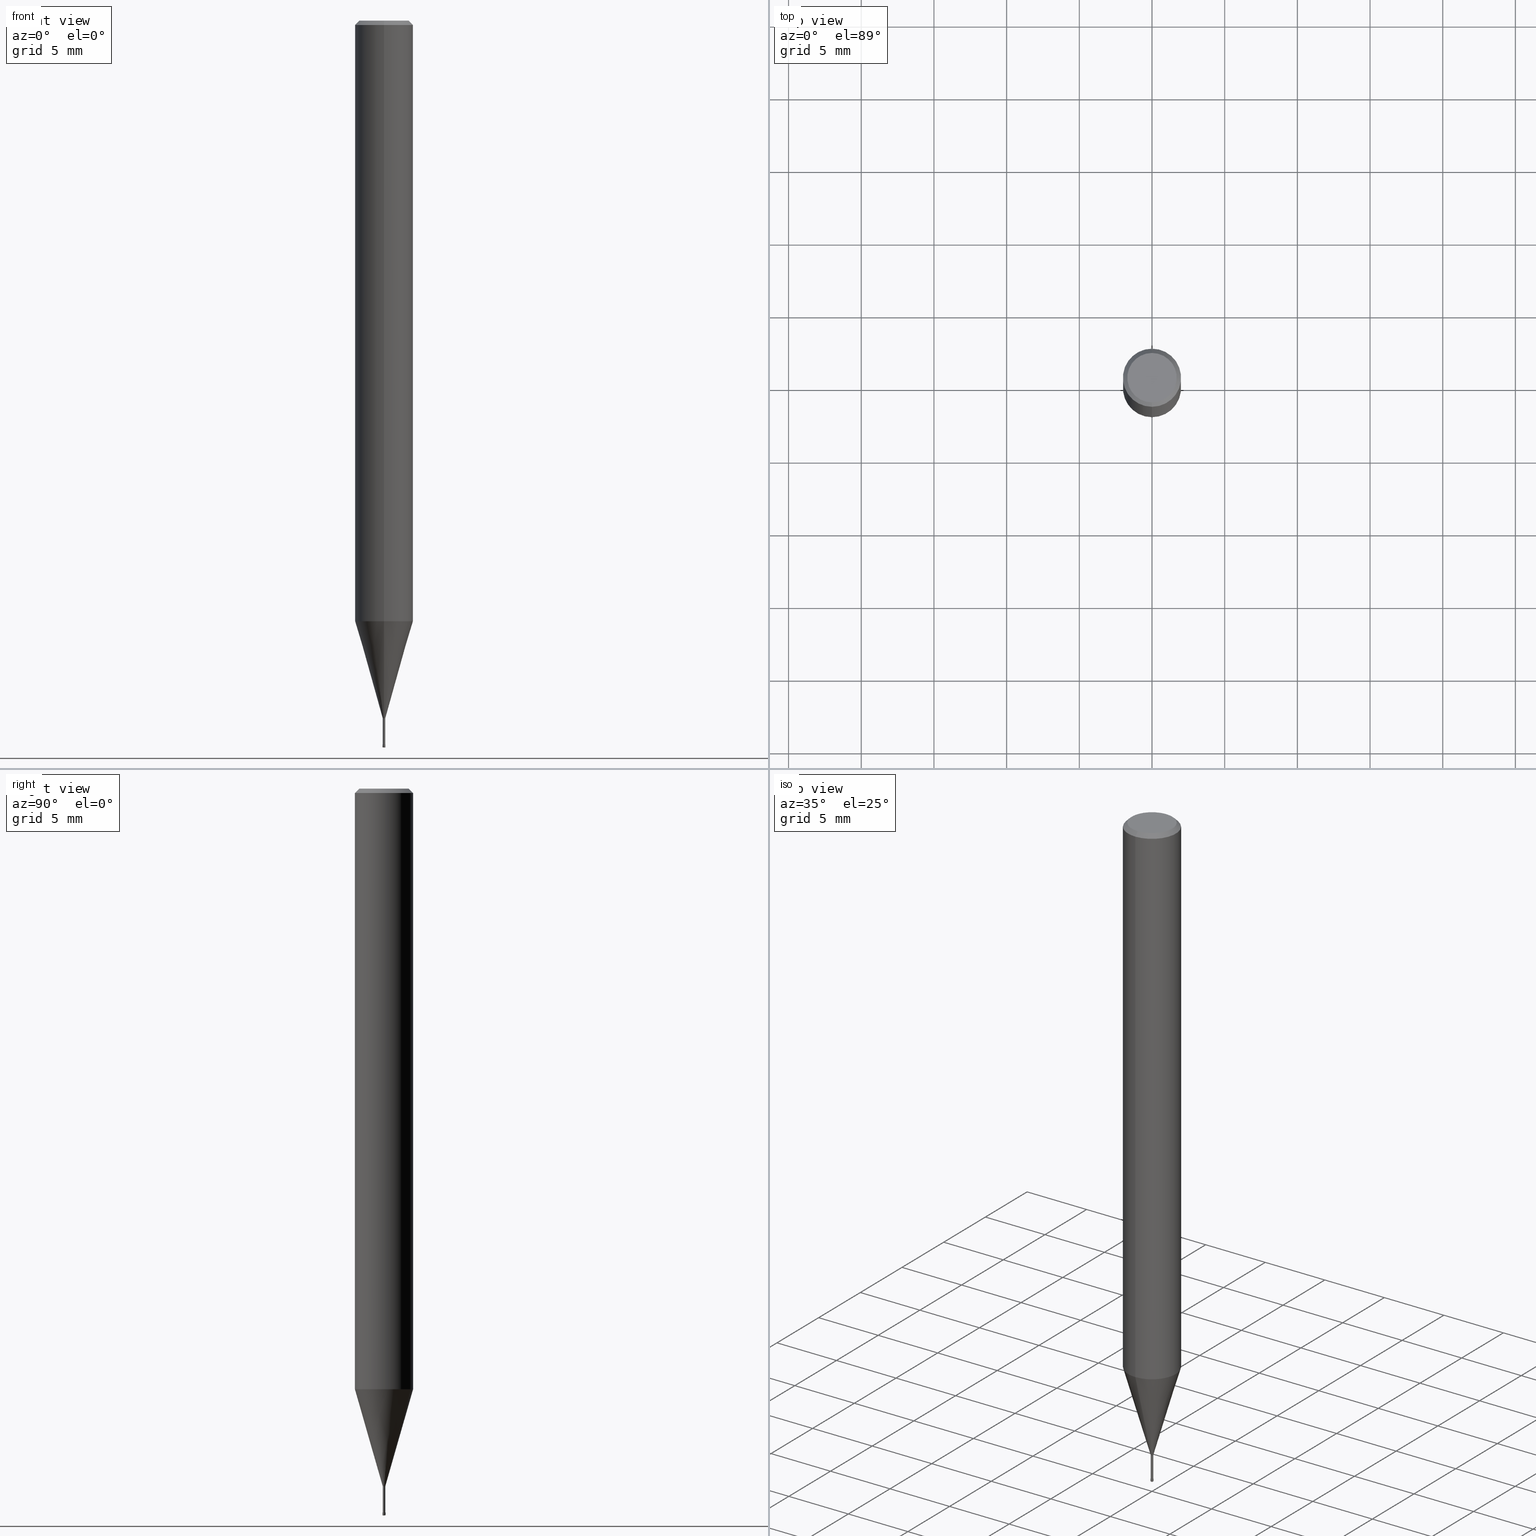
[diagram: canonical four-view strip — front | top / right | iso, engineering-drawing reading convention]
A machine part, canonical four-view strip (front | top / right | iso — engineering-drawing reading convention). The complete STEP part file that produces these views, byte-faithful:
ISO-10303-21;
HEADER;
FILE_DESCRIPTION(('no description'),'unknown implementation level');
FILE_NAME('HLRS2002-005-020E-Huellk.stp','  ',('CIMSOURCE GmbH'),('CADClick - KiM GmbH - www.kimweb.de'),'unknown preprocess','ACIS','unknown authorization');
FILE_SCHEMA(('automotive_design'));
ENDSEC;
DATA;
#1=MECHANICAL_DESIGN_GEOMETRIC_PRESENTATION_REPRESENTATION(' ',(#14,#15,#16,#17,#18,#19,#20,#21,#22,#23,#24,#25,#26,#27,#28,#29,#30,#31,#32,#33,#34,#35,#36,#37,#38,#39,#40,#41,#42,#43,#44,#45,#46,#47,#48,#49,#50,#51,#52,#53,#54,#55,#56,#57,#58,#59,#60,#61,#62,#63,#64,#65,#66,#67,#68,#69,#70,#71,#72,#73,#74,#75,#76,#77,#78,#79,#80),#10);
#2=PRODUCT_DEFINITION_CONTEXT('',#81,'design');
#3=APPLICATION_PROTOCOL_DEFINITION('INTERNATIONAL STANDARD','automotive_design',1994,#81);
#4=PRODUCT_CATEGORY_RELATIONSHIP('NONE','NONE',#82,#83);
#5=SHAPE_DEFINITION_REPRESENTATION(#84,#85);
#6=PRODUCT_DEFINITION_CONTEXT('',#86,'design');
#7=APPLICATION_PROTOCOL_DEFINITION('INTERNATIONAL STANDARD','automotive_design',1994,#86);
#8=PRODUCT_CATEGORY_RELATIONSHIP('NONE','NONE',#87,#88);
#9=SHAPE_DEFINITION_REPRESENTATION(#89,#90);
#10= (GEOMETRIC_REPRESENTATION_CONTEXT(3)GLOBAL_UNCERTAINTY_ASSIGNED_CONTEXT((#93))GLOBAL_UNIT_ASSIGNED_CONTEXT((#95,#96,#97))REPRESENTATION_CONTEXT('NONE','WORKSPACE'));
#14=STYLED_ITEM('',(#99),#100);
#15=STYLED_ITEM('',(#101),#102);
#16=STYLED_ITEM('',(#103),#104);
#17=STYLED_ITEM('',(#105),#106);
#18=STYLED_ITEM('',(#107),#108);
#19=STYLED_ITEM('',(#109),#110);
#20=STYLED_ITEM('',(#111),#112);
#21=STYLED_ITEM('',(#113),#114);
#22=STYLED_ITEM('',(#115),#116);
#23=STYLED_ITEM('',(#117),#118);
#24=STYLED_ITEM('',(#119),#120);
#25=STYLED_ITEM('',(#121),#122);
#26=STYLED_ITEM('',(#123),#124);
#27=STYLED_ITEM('',(#125),#126);
#28=STYLED_ITEM('',(#127),#128);
#29=STYLED_ITEM('',(#129),#130);
#30=STYLED_ITEM('',(#131),#132);
#31=STYLED_ITEM('',(#133),#134);
#32=STYLED_ITEM('',(#135),#136);
#33=STYLED_ITEM('',(#137),#138);
#34=STYLED_ITEM('',(#139),#140);
#35=STYLED_ITEM('',(#141),#142);
#36=STYLED_ITEM('',(#143),#144);
#37=STYLED_ITEM('',(#145),#146);
#38=STYLED_ITEM('',(#147),#148);
#39=STYLED_ITEM('',(#149),#150);
#40=STYLED_ITEM('',(#151),#152);
#41=STYLED_ITEM('',(#153),#154);
#42=STYLED_ITEM('',(#155),#156);
#43=STYLED_ITEM('',(#157),#158);
#44=STYLED_ITEM('',(#159),#160);
#45=STYLED_ITEM('',(#161),#162);
#46=STYLED_ITEM('',(#163),#164);
#47=STYLED_ITEM('',(#165),#166);
#48=STYLED_ITEM('',(#167),#168);
#49=STYLED_ITEM('',(#169),#170);
#50=STYLED_ITEM('',(#171),#172);
#51=STYLED_ITEM('',(#173),#174);
#52=STYLED_ITEM('',(#175),#176);
#53=STYLED_ITEM('',(#177),#178);
#54=STYLED_ITEM('',(#179),#180);
#55=STYLED_ITEM('',(#181),#182);
#56=STYLED_ITEM('',(#183),#184);
#57=STYLED_ITEM('',(#185),#186);
#58=STYLED_ITEM('',(#187),#188);
#59=STYLED_ITEM('',(#189),#190);
#60=STYLED_ITEM('',(#191),#192);
#61=STYLED_ITEM('',(#193),#194);
#62=STYLED_ITEM('',(#195),#196);
#63=STYLED_ITEM('',(#197),#198);
#64=STYLED_ITEM('',(#199),#200);
#65=STYLED_ITEM('',(#201),#202);
#66=STYLED_ITEM('',(#203),#204);
#67=STYLED_ITEM('',(#205),#206);
#68=STYLED_ITEM('',(#207),#208);
#69=STYLED_ITEM('',(#209),#210);
#70=STYLED_ITEM('',(#211),#212);
#71=STYLED_ITEM('',(#213),#214);
#72=STYLED_ITEM('',(#215),#216);
#73=STYLED_ITEM('',(#217),#218);
#74=STYLED_ITEM('',(#219),#220);
#75=STYLED_ITEM('',(#221),#222);
#76=STYLED_ITEM('',(#223),#224);
#77=STYLED_ITEM('',(#225),#226);
#78=STYLED_ITEM('',(#227),#228);
#79=STYLED_ITEM('',(#229),#230);
#80=STYLED_ITEM('',(#231),#232);
#81=APPLICATION_CONTEXT(' ');
#82=PRODUCT_CATEGORY('part','NONE');
#83=PRODUCT_RELATED_PRODUCT_CATEGORY('detail',' ',(#233));
#84=PRODUCT_DEFINITION_SHAPE('NONE','NONE',#234);
#85=ADVANCED_BREP_SHAPE_REPRESENTATION('1',(#224,#235),#10);
#86=APPLICATION_CONTEXT(' ');
#87=PRODUCT_CATEGORY('part','NONE');
#88=PRODUCT_RELATED_PRODUCT_CATEGORY('detail',' ',(#236));
#89=PRODUCT_DEFINITION_SHAPE('NONE','NONE',#237);
#90=ADVANCED_BREP_SHAPE_REPRESENTATION('2',(#122,#238),#10);
#93=UNCERTAINTY_MEASURE_WITH_UNIT(LENGTH_MEASURE(1.0E-006),#95,'','');
#95= (CONVERSION_BASED_UNIT('MILLIMETRE',#241)LENGTH_UNIT()NAMED_UNIT(#244));
#96= (NAMED_UNIT(#246)PLANE_ANGLE_UNIT()SI_UNIT($,.RADIAN.));
#97= (NAMED_UNIT(#246)SOLID_ANGLE_UNIT()SI_UNIT($,.STERADIAN.));
#99=PRESENTATION_STYLE_ASSIGNMENT((#252));
#100=EDGE_CURVE('',#120,#182,#253,.T.);
#101=PRESENTATION_STYLE_ASSIGNMENT((#254));
#102=VERTEX_POINT('',#255);
#103=PRESENTATION_STYLE_ASSIGNMENT((#256));
#104=ADVANCED_FACE('',(#257),#258,.T.);
#105=PRESENTATION_STYLE_ASSIGNMENT((#259));
#106=EDGE_CURVE('',#170,#216,#260,.T.);
#107=PRESENTATION_STYLE_ASSIGNMENT((#261));
#108=VERTEX_POINT('',#262);
#109=PRESENTATION_STYLE_ASSIGNMENT((#263));
#110=EDGE_CURVE('',#206,#152,#264,.T.);
#111=PRESENTATION_STYLE_ASSIGNMENT((#265));
#112=ADVANCED_FACE('',(#266),#267,.T.);
#113=PRESENTATION_STYLE_ASSIGNMENT((#268));
#114=EDGE_CURVE('',#162,#152,#269,.T.);
#115=PRESENTATION_STYLE_ASSIGNMENT((#270));
#116=EDGE_CURVE('',#162,#138,#271,.T.);
#117=PRESENTATION_STYLE_ASSIGNMENT((#272));
#118=EDGE_CURVE('',#108,#120,#273,.T.);
#119=PRESENTATION_STYLE_ASSIGNMENT((#274));
#120=VERTEX_POINT('',#275);
#121=PRESENTATION_STYLE_ASSIGNMENT((#276));
#122=MANIFOLD_SOLID_BREP('2',#277);
#123=PRESENTATION_STYLE_ASSIGNMENT((#278));
#124=ADVANCED_FACE('',(#279),#280,.T.);
#125=PRESENTATION_STYLE_ASSIGNMENT((#281));
#126=EDGE_CURVE('',#108,#194,#282,.T.);
#127=PRESENTATION_STYLE_ASSIGNMENT((#283));
#128=ADVANCED_FACE('',(#284),#285,.T.);
#129=PRESENTATION_STYLE_ASSIGNMENT((#286));
#130=VERTEX_POINT('',#287);
#131=PRESENTATION_STYLE_ASSIGNMENT((#288));
#132=VERTEX_POINT('',#289);
#133=PRESENTATION_STYLE_ASSIGNMENT((#290));
#134=VERTEX_POINT('',#291);
#135=PRESENTATION_STYLE_ASSIGNMENT((#292));
#136=ADVANCED_FACE('',(#293),#294,.T.);
#137=PRESENTATION_STYLE_ASSIGNMENT((#295));
#138=VERTEX_POINT('',#296);
#139=PRESENTATION_STYLE_ASSIGNMENT((#297));
#140=EDGE_CURVE('',#132,#154,#298,.T.);
#141=PRESENTATION_STYLE_ASSIGNMENT((#299));
#142=EDGE_CURVE('',#204,#132,#300,.T.);
#143=PRESENTATION_STYLE_ASSIGNMENT((#301));
#144=EDGE_CURVE('',#130,#204,#302,.T.);
#145=PRESENTATION_STYLE_ASSIGNMENT((#303));
#146=ADVANCED_FACE('',(#304),#305,.T.);
#147=PRESENTATION_STYLE_ASSIGNMENT((#306));
#148=VERTEX_POINT('',#307);
#149=PRESENTATION_STYLE_ASSIGNMENT((#308));
#150=EDGE_CURVE('',#216,#204,#309,.T.);
#151=PRESENTATION_STYLE_ASSIGNMENT((#310));
#152=VERTEX_POINT('',#311);
#153=PRESENTATION_STYLE_ASSIGNMENT((#312));
#154=VERTEX_POINT('',#313);
#155=PRESENTATION_STYLE_ASSIGNMENT((#314));
#156=EDGE_CURVE('',#204,#130,#315,.T.);
#157=PRESENTATION_STYLE_ASSIGNMENT((#316));
#158=ADVANCED_FACE('',(#317,#318),#319,.T.);
#159=PRESENTATION_STYLE_ASSIGNMENT((#320));
#160=EDGE_CURVE('',#182,#120,#321,.T.);
#161=PRESENTATION_STYLE_ASSIGNMENT((#322));
#162=VERTEX_POINT('',#323);
#163=PRESENTATION_STYLE_ASSIGNMENT((#324));
#164=ADVANCED_FACE('',(#325),#326,.T.);
#165=PRESENTATION_STYLE_ASSIGNMENT((#327));
#166=EDGE_CURVE('',#134,#162,#328,.T.);
#167=PRESENTATION_STYLE_ASSIGNMENT((#329));
#168=EDGE_CURVE('',#154,#132,#330,.T.);
#169=PRESENTATION_STYLE_ASSIGNMENT((#331));
#170=VERTEX_POINT('',#332);
#171=PRESENTATION_STYLE_ASSIGNMENT((#333));
#172=ADVANCED_FACE('',(#334),#335,.T.);
#173=PRESENTATION_STYLE_ASSIGNMENT((#336));
#174=EDGE_CURVE('',#194,#108,#337,.T.);
#175=PRESENTATION_STYLE_ASSIGNMENT((#338));
#176=EDGE_CURVE('',#138,#148,#339,.T.);
#177=PRESENTATION_STYLE_ASSIGNMENT((#340));
#178=VERTEX_POINT('',#341);
#179=PRESENTATION_STYLE_ASSIGNMENT((#342));
#180=ADVANCED_FACE('',(#343),#344,.T.);
#181=PRESENTATION_STYLE_ASSIGNMENT((#345));
#182=VERTEX_POINT('',#346);
#183=PRESENTATION_STYLE_ASSIGNMENT((#347));
#184=EDGE_CURVE('',#130,#170,#348,.T.);
#185=PRESENTATION_STYLE_ASSIGNMENT((#349));
#186=EDGE_CURVE('',#178,#102,#350,.T.);
#187=PRESENTATION_STYLE_ASSIGNMENT((#351));
#188=ADVANCED_FACE('',(#352),#353,.T.);
#189=PRESENTATION_STYLE_ASSIGNMENT((#354));
#190=EDGE_CURVE('',#102,#108,#355,.T.);
#191=PRESENTATION_STYLE_ASSIGNMENT((#356));
#192=EDGE_CURVE('',#216,#170,#357,.T.);
#193=PRESENTATION_STYLE_ASSIGNMENT((#358));
#194=VERTEX_POINT('',#359);
#195=PRESENTATION_STYLE_ASSIGNMENT((#360));
#196=EDGE_CURVE('',#194,#178,#361,.T.);
#197=PRESENTATION_STYLE_ASSIGNMENT((#362));
#198=ADVANCED_FACE('',(#363),#364,.T.);
#199=PRESENTATION_STYLE_ASSIGNMENT((#365));
#200=ADVANCED_FACE('',(#366),#367,.T.);
#201=PRESENTATION_STYLE_ASSIGNMENT((#368));
#202=EDGE_CURVE('',#148,#138,#369,.T.);
#203=PRESENTATION_STYLE_ASSIGNMENT((#370));
#204=VERTEX_POINT('',#371);
#205=PRESENTATION_STYLE_ASSIGNMENT((#372));
#206=VERTEX_POINT('',#373);
#207=PRESENTATION_STYLE_ASSIGNMENT((#374));
#208=ADVANCED_FACE('',(#375),#376,.T.);
#209=PRESENTATION_STYLE_ASSIGNMENT((#377));
#210=EDGE_CURVE('',#206,#134,#378,.T.);
#211=PRESENTATION_STYLE_ASSIGNMENT((#379));
#212=EDGE_CURVE('',#182,#194,#380,.T.);
#213=PRESENTATION_STYLE_ASSIGNMENT((#381));
#214=EDGE_CURVE('',#152,#206,#382,.T.);
#215=PRESENTATION_STYLE_ASSIGNMENT((#383));
#216=VERTEX_POINT('',#384);
#217=PRESENTATION_STYLE_ASSIGNMENT((#385));
#218=ADVANCED_FACE('',(#386),#387,.T.);
#219=PRESENTATION_STYLE_ASSIGNMENT((#388));
#220=ADVANCED_FACE('',(#389),#390,.T.);
#221=PRESENTATION_STYLE_ASSIGNMENT((#391));
#222=EDGE_CURVE('',#148,#134,#392,.T.);
#223=PRESENTATION_STYLE_ASSIGNMENT((#393));
#224=MANIFOLD_SOLID_BREP('1',#394);
#225=PRESENTATION_STYLE_ASSIGNMENT((#395));
#226=ADVANCED_FACE('',(#396),#397,.T.);
#227=PRESENTATION_STYLE_ASSIGNMENT((#398));
#228=EDGE_CURVE('',#102,#178,#399,.T.);
#229=PRESENTATION_STYLE_ASSIGNMENT((#400));
#230=EDGE_CURVE('',#154,#130,#401,.T.);
#231=PRESENTATION_STYLE_ASSIGNMENT((#402));
#232=EDGE_CURVE('',#162,#134,#403,.T.);
#233=PRODUCT('1','1','PART-1-DESC',(#404));
#234=PRODUCT_DEFINITION('NONE','NONE',#405,#2);
#235=AXIS2_PLACEMENT_3D('',#406,#407,#408);
#236=PRODUCT('2','2','PART-2-DESC',(#409));
#237=PRODUCT_DEFINITION('NONE','NONE',#410,#6);
#238=AXIS2_PLACEMENT_3D('',#411,#412,#413);
#241=LENGTH_MEASURE_WITH_UNIT(LENGTH_MEASURE(1.0),#414);
#244=DIMENSIONAL_EXPONENTS(1.0,0.0,0.0,0.0,0.0,0.0,0.0);
#246=DIMENSIONAL_EXPONENTS(0.0,0.0,0.0,0.0,0.0,0.0,0.0);
#252=CURVE_STYLE('',#415,POSITIVE_LENGTH_MEASURE(1.0E-006),#416);
#253=CIRCLE('',#417,1.7);
#254=POINT_STYLE(' ',#418,POSITIVE_LENGTH_MEASURE(1.0E-006),#419);
#255=CARTESIAN_POINT('',(2.44921270764475E-016,-2.0,-41.322));
#256=SURFACE_STYLE_USAGE(.BOTH.,#420);
#257=FACE_OUTER_BOUND('',#421,.T.);
#258=TOROIDAL_SURFACE('',#422,0.0499999999999999,0.0500000000000001);
#259=CURVE_STYLE('',#423,POSITIVE_LENGTH_MEASURE(1.0E-006),#424);
#260=CIRCLE('',#425,0.08495);
#261=POINT_STYLE(' ',#426,POSITIVE_LENGTH_MEASURE(1.0E-006),#427);
#262=CARTESIAN_POINT('',(2.44921270764475E-016,-2.0,-0.299999999999997));
#263=CURVE_STYLE('',#428,POSITIVE_LENGTH_MEASURE(1.0E-006),#429);
#264=CIRCLE('',#430,0.05);
#265=SURFACE_STYLE_USAGE(.BOTH.,#431);
#266=FACE_OUTER_BOUND('',#432,.T.);
#267=CYLINDRICAL_SURFACE('',#433,2.0);
#268=CURVE_STYLE('',#434,POSITIVE_LENGTH_MEASURE(1.0E-006),#435);
#269=CIRCLE('',#436,0.0500000000000001);
#270=CURVE_STYLE('',#437,POSITIVE_LENGTH_MEASURE(1.0E-006),#438);
#271=LINE('',#439,#440);
#272=CURVE_STYLE('',#441,POSITIVE_LENGTH_MEASURE(1.0E-006),#442);
#273=LINE('',#443,#444);
#274=POINT_STYLE(' ',#445,POSITIVE_LENGTH_MEASURE(1.0E-006),#446);
#275=CARTESIAN_POINT('',(2.08183080149804E-016,-1.7,0.0));
#276=SURFACE_STYLE_USAGE(.BOTH.,#447);
#277=CLOSED_SHELL('',(#198,#226,#220,#164,#104,#200));
#278=SURFACE_STYLE_USAGE(.BOTH.,#448);
#279=FACE_OUTER_BOUND('',#449,.T.);
#280=CONICAL_SURFACE('',#450,1.85,0.785398163397453);
#281=CURVE_STYLE('',#451,POSITIVE_LENGTH_MEASURE(1.0E-006),#452);
#282=CIRCLE('',#453,2.0);
#283=SURFACE_STYLE_USAGE(.BOTH.,#454);
#284=FACE_OUTER_BOUND('',#455,.T.);
#285=CYLINDRICAL_SURFACE('',#456,0.08495);
#286=POINT_STYLE(' ',#457,POSITIVE_LENGTH_MEASURE(1.0E-006),#458);
#287=CARTESIAN_POINT('',(0.0,0.08495,-48.0));
#288=POINT_STYLE(' ',#459,POSITIVE_LENGTH_MEASURE(1.0E-006),#460);
#289=CARTESIAN_POINT('',(2.44915147732706E-016,-1.99995,-41.322));
#290=POINT_STYLE(' ',#461,POSITIVE_LENGTH_MEASURE(1.0E-006),#462);
#291=CARTESIAN_POINT('',(0.0,0.1,-49.95));
#292=SURFACE_STYLE_USAGE(.BOTH.,#463);
#293=FACE_OUTER_BOUND('',#464,.T.);
#294=PLANE('',#465);
#295=POINT_STYLE(' ',#466,POSITIVE_LENGTH_MEASURE(1.0E-006),#467);
#296=CARTESIAN_POINT('',(1.22338174746855E-017,-0.0999,-49.8));
#297=CURVE_STYLE('',#468,POSITIVE_LENGTH_MEASURE(1.0E-006),#469);
#298=CIRCLE('',#470,1.99995);
#299=CURVE_STYLE('',#471,POSITIVE_LENGTH_MEASURE(1.0E-006),#472);
#300=LINE('',#473,#474);
#301=CURVE_STYLE('',#475,POSITIVE_LENGTH_MEASURE(1.0E-006),#476);
#302=CIRCLE('',#477,0.08495);
#303=SURFACE_STYLE_USAGE(.BOTH.,#478);
#304=FACE_OUTER_BOUND('',#479,.T.);
#305=CYLINDRICAL_SURFACE('',#480,2.0);
#306=POINT_STYLE(' ',#481,POSITIVE_LENGTH_MEASURE(1.0E-006),#482);
#307=CARTESIAN_POINT('',(0.0,0.0999,-49.8));
#308=CURVE_STYLE('',#483,POSITIVE_LENGTH_MEASURE(1.0E-006),#484);
#309=LINE('',#485,#486);
#310=POINT_STYLE(' ',#487,POSITIVE_LENGTH_MEASURE(1.0E-006),#488);
#311=CARTESIAN_POINT('',(6.12303176911189E-018,-0.05,-50.0));
#312=POINT_STYLE(' ',#489,POSITIVE_LENGTH_MEASURE(1.0E-006),#490);
#313=CARTESIAN_POINT('',(0.0,1.99995,-41.322));
#314=CURVE_STYLE('',#491,POSITIVE_LENGTH_MEASURE(1.0E-006),#492);
#315=CIRCLE('',#493,0.08495);
#316=SURFACE_STYLE_USAGE(.BOTH.,#494);
#317=FACE_OUTER_BOUND('',#495,.T.);
#318=FACE_BOUND('',#496,.T.);
#319=PLANE('',#497);
#320=CURVE_STYLE('',#498,POSITIVE_LENGTH_MEASURE(1.0E-006),#499);
#321=CIRCLE('',#500,1.7);
#322=POINT_STYLE(' ',#501,POSITIVE_LENGTH_MEASURE(1.0E-006),#502);
#323=CARTESIAN_POINT('',(1.22460635382238E-017,-0.1,-49.95));
#324=SURFACE_STYLE_USAGE(.BOTH.,#503);
#325=FACE_OUTER_BOUND('',#504,.T.);
#326=CONICAL_SURFACE('',#505,0.09995,0.00066666656790128);
#327=CURVE_STYLE('',#506,POSITIVE_LENGTH_MEASURE(1.0E-006),#507);
#328=CIRCLE('',#508,0.1);
#329=CURVE_STYLE('',#509,POSITIVE_LENGTH_MEASURE(1.0E-006),#510);
#330=CIRCLE('',#511,1.99995);
#331=POINT_STYLE(' ',#512,POSITIVE_LENGTH_MEASURE(1.0E-006),#513);
#332=CARTESIAN_POINT('',(0.0,0.08495,-49.8));
#333=SURFACE_STYLE_USAGE(.BOTH.,#514);
#334=FACE_OUTER_BOUND('',#515,.T.);
#335=CONICAL_SURFACE('',#516,1.04245,0.279268497676986);
#336=CURVE_STYLE('',#517,POSITIVE_LENGTH_MEASURE(1.0E-006),#518);
#337=CIRCLE('',#519,2.0);
#338=CURVE_STYLE('',#520,POSITIVE_LENGTH_MEASURE(1.0E-006),#521);
#339=CIRCLE('',#522,0.0999);
#340=POINT_STYLE(' ',#523,POSITIVE_LENGTH_MEASURE(1.0E-006),#524);
#341=CARTESIAN_POINT('',(0.0,2.0,-41.322));
#342=SURFACE_STYLE_USAGE(.BOTH.,#525);
#343=FACE_OUTER_BOUND('',#526,.T.);
#344=CONICAL_SURFACE('',#527,1.04245,0.279268497676986);
#345=POINT_STYLE(' ',#528,POSITIVE_LENGTH_MEASURE(1.0E-006),#529);
#346=CARTESIAN_POINT('',(0.0,1.7,0.0));
#347=CURVE_STYLE('',#530,POSITIVE_LENGTH_MEASURE(1.0E-006),#531);
#348=LINE('',#532,#533);
#349=CURVE_STYLE('',#534,POSITIVE_LENGTH_MEASURE(1.0E-006),#535);
#350=CIRCLE('',#536,2.0);
#351=SURFACE_STYLE_USAGE(.BOTH.,#537);
#352=FACE_OUTER_BOUND('',#538,.T.);
#353=PLANE('',#539);
#354=CURVE_STYLE('',#540,POSITIVE_LENGTH_MEASURE(1.0E-006),#541);
#355=LINE('',#542,#543);
#356=CURVE_STYLE('',#544,POSITIVE_LENGTH_MEASURE(1.0E-006),#545);
#357=CIRCLE('',#546,0.08495);
#358=POINT_STYLE(' ',#547,POSITIVE_LENGTH_MEASURE(1.0E-006),#548);
#359=CARTESIAN_POINT('',(0.0,2.0,-0.299999999999997));
#360=CURVE_STYLE('',#549,POSITIVE_LENGTH_MEASURE(1.0E-006),#550);
#361=LINE('',#551,#552);
#362=SURFACE_STYLE_USAGE(.BOTH.,#553);
#363=FACE_OUTER_BOUND('',#554,.T.);
#364=TOROIDAL_SURFACE('',#555,0.0499999999999999,0.0500000000000001);
#365=SURFACE_STYLE_USAGE(.BOTH.,#556);
#366=FACE_OUTER_BOUND('',#557,.T.);
#367=PLANE('',#558);
#368=CURVE_STYLE('',#559,POSITIVE_LENGTH_MEASURE(1.0E-006),#560);
#369=CIRCLE('',#561,0.0999);
#370=POINT_STYLE(' ',#562,POSITIVE_LENGTH_MEASURE(1.0E-006),#563);
#371=CARTESIAN_POINT('',(1.04030309757211E-017,-0.08495,-48.0));
#372=POINT_STYLE(' ',#564,POSITIVE_LENGTH_MEASURE(1.0E-006),#565);
#373=CARTESIAN_POINT('',(0.0,0.05,-50.0));
#374=SURFACE_STYLE_USAGE(.BOTH.,#566);
#375=FACE_OUTER_BOUND('',#567,.T.);
#376=CONICAL_SURFACE('',#568,1.85,0.785398163397453);
#377=CURVE_STYLE('',#569,POSITIVE_LENGTH_MEASURE(1.0E-006),#570);
#378=CIRCLE('',#571,0.0500000000000001);
#379=CURVE_STYLE('',#572,POSITIVE_LENGTH_MEASURE(1.0E-006),#573);
#380=LINE('',#574,#575);
#381=CURVE_STYLE('',#576,POSITIVE_LENGTH_MEASURE(1.0E-006),#577);
#382=CIRCLE('',#578,0.05);
#383=POINT_STYLE(' ',#579,POSITIVE_LENGTH_MEASURE(1.0E-006),#580);
#384=CARTESIAN_POINT('',(1.04030309757211E-017,-0.08495,-49.8));
#385=SURFACE_STYLE_USAGE(.BOTH.,#581);
#386=FACE_OUTER_BOUND('',#582,.T.);
#387=CYLINDRICAL_SURFACE('',#583,0.08495);
#388=SURFACE_STYLE_USAGE(.BOTH.,#584);
#389=FACE_OUTER_BOUND('',#585,.T.);
#390=PLANE('',#586);
#391=CURVE_STYLE('',#587,POSITIVE_LENGTH_MEASURE(1.0E-006),#588);
#392=LINE('',#589,#590);
#393=SURFACE_STYLE_USAGE(.BOTH.,#591);
#394=CLOSED_SHELL('',(#128,#172,#146,#208,#158,#188,#124,#112,#180,#218,#136));
#395=SURFACE_STYLE_USAGE(.BOTH.,#592);
#396=FACE_OUTER_BOUND('',#593,.T.);
#397=CONICAL_SURFACE('',#594,0.09995,0.00066666656790128);
#398=CURVE_STYLE('',#595,POSITIVE_LENGTH_MEASURE(1.0E-006),#596);
#399=CIRCLE('',#597,2.0);
#400=CURVE_STYLE('',#598,POSITIVE_LENGTH_MEASURE(1.0E-006),#599);
#401=LINE('',#600,#601);
#402=CURVE_STYLE('',#602,POSITIVE_LENGTH_MEASURE(1.0E-006),#603);
#403=CIRCLE('',#604,0.1);
#404=PRODUCT_CONTEXT('',#81,'mechanical');
#405=PRODUCT_DEFINITION_FORMATION_WITH_SPECIFIED_SOURCE(' ','NONE',#233,.NOT_KNOWN.);
#406=CARTESIAN_POINT('',(0.0,0.0,0.0));
#407=DIRECTION('',(0.0,0.0,1.0));
#408=DIRECTION('',(1.0,0.0,0.0));
#409=PRODUCT_CONTEXT('',#86,'mechanical');
#410=PRODUCT_DEFINITION_FORMATION_WITH_SPECIFIED_SOURCE(' ','NONE',#236,.NOT_KNOWN.);
#411=CARTESIAN_POINT('',(0.0,0.0,0.0));
#412=DIRECTION('',(0.0,0.0,1.0));
#413=DIRECTION('',(1.0,0.0,0.0));
#414= (NAMED_UNIT(#244)LENGTH_UNIT()SI_UNIT(.MILLI.,.METRE.));
#415=DRAUGHTING_PRE_DEFINED_CURVE_FONT('continuous');
#416=COLOUR_RGB('',0.498039215803146,0.498039215803146,0.498039215803146);
#417=AXIS2_PLACEMENT_3D('',#606,#607,#608);
#418=PRE_DEFINED_MARKER('');
#419=COLOUR_RGB('',0.498039215803146,0.498039215803146,0.498039215803146);
#420=SURFACE_SIDE_STYLE('',(#609));
#421=EDGE_LOOP('',(#610,#611,#612,#613));
#422=AXIS2_PLACEMENT_3D('',#614,#615,#616);
#423=DRAUGHTING_PRE_DEFINED_CURVE_FONT('continuous');
#424=COLOUR_RGB('',0.498039215803146,0.498039215803146,0.498039215803146);
#425=AXIS2_PLACEMENT_3D('',#617,#618,#619);
#426=PRE_DEFINED_MARKER('');
#427=COLOUR_RGB('',0.498039215803146,0.498039215803146,0.498039215803146);
#428=DRAUGHTING_PRE_DEFINED_CURVE_FONT('continuous');
#429=COLOUR_RGB('',0.800000011920929,0.800000011920929,0.800000011920929);
#430=AXIS2_PLACEMENT_3D('',#620,#621,#622);
#431=SURFACE_SIDE_STYLE('',(#623));
#432=EDGE_LOOP('',(#624,#625,#626,#627));
#433=AXIS2_PLACEMENT_3D('',#628,#629,#630);
#434=DRAUGHTING_PRE_DEFINED_CURVE_FONT('continuous');
#435=COLOUR_RGB('',0.800000011920929,0.800000011920929,0.800000011920929);
#436=AXIS2_PLACEMENT_3D('',#631,#632,#633);
#437=DRAUGHTING_PRE_DEFINED_CURVE_FONT('continuous');
#438=COLOUR_RGB('',0.800000011920929,0.800000011920929,0.800000011920929);
#439=CARTESIAN_POINT('',(1.22399405064547E-017,-0.09995,-49.875));
#440=VECTOR('',#634,1.0);
#441=DRAUGHTING_PRE_DEFINED_CURVE_FONT('continuous');
#442=COLOUR_RGB('',0.498039215803146,0.498039215803146,0.498039215803146);
#443=CARTESIAN_POINT('',(2.2655217545714E-016,-1.85,-0.149999999999999));
#444=VECTOR('',#635,1.0);
#445=PRE_DEFINED_MARKER('');
#446=COLOUR_RGB('',0.498039215803146,0.498039215803146,0.498039215803146);
#447=SURFACE_SIDE_STYLE('',(#636));
#448=SURFACE_SIDE_STYLE('',(#637));
#449=EDGE_LOOP('',(#638,#639,#640,#641));
#450=AXIS2_PLACEMENT_3D('',#642,#643,#644);
#451=DRAUGHTING_PRE_DEFINED_CURVE_FONT('continuous');
#452=COLOUR_RGB('',0.498039215803146,0.498039215803146,0.498039215803146);
#453=AXIS2_PLACEMENT_3D('',#645,#646,#647);
#454=SURFACE_SIDE_STYLE('',(#648));
#455=EDGE_LOOP('',(#649,#650,#651,#652));
#456=AXIS2_PLACEMENT_3D('',#653,#654,#655);
#457=PRE_DEFINED_MARKER('');
#458=COLOUR_RGB('',0.498039215803146,0.498039215803146,0.498039215803146);
#459=PRE_DEFINED_MARKER('');
#460=COLOUR_RGB('',0.498039215803146,0.498039215803146,0.498039215803146);
#461=PRE_DEFINED_MARKER('');
#462=COLOUR_RGB('',0.800000011920929,0.800000011920929,0.800000011920929);
#463=SURFACE_SIDE_STYLE('',(#656));
#464=EDGE_LOOP('',(#657,#658));
#465=AXIS2_PLACEMENT_3D('',#659,#660,#661);
#466=PRE_DEFINED_MARKER('');
#467=COLOUR_RGB('',0.800000011920929,0.800000011920929,0.800000011920929);
#468=DRAUGHTING_PRE_DEFINED_CURVE_FONT('continuous');
#469=COLOUR_RGB('',0.498039215803146,0.498039215803146,0.498039215803146);
#470=AXIS2_PLACEMENT_3D('',#662,#663,#664);
#471=DRAUGHTING_PRE_DEFINED_CURVE_FONT('continuous');
#472=COLOUR_RGB('',0.498039215803146,0.498039215803146,0.498039215803146);
#473=CARTESIAN_POINT('',(1.27659089354214E-016,-1.04245,-44.661));
#474=VECTOR('',#665,1.0);
#475=DRAUGHTING_PRE_DEFINED_CURVE_FONT('continuous');
#476=COLOUR_RGB('',0.498039215803146,0.498039215803146,0.498039215803146);
#477=AXIS2_PLACEMENT_3D('',#666,#667,#668);
#478=SURFACE_SIDE_STYLE('',(#669));
#479=EDGE_LOOP('',(#670,#671,#672,#673));
#480=AXIS2_PLACEMENT_3D('',#674,#675,#676);
#481=PRE_DEFINED_MARKER('');
#482=COLOUR_RGB('',0.800000011920929,0.800000011920929,0.800000011920929);
#483=DRAUGHTING_PRE_DEFINED_CURVE_FONT('continuous');
#484=COLOUR_RGB('',0.498039215803146,0.498039215803146,0.498039215803146);
#485=CARTESIAN_POINT('',(1.04030309757211E-017,-0.08495,-48.9));
#486=VECTOR('',#677,1.0);
#487=PRE_DEFINED_MARKER('');
#488=COLOUR_RGB('',0.800000011920929,0.800000011920929,0.800000011920929);
#489=PRE_DEFINED_MARKER('');
#490=COLOUR_RGB('',0.498039215803146,0.498039215803146,0.498039215803146);
#491=DRAUGHTING_PRE_DEFINED_CURVE_FONT('continuous');
#492=COLOUR_RGB('',0.498039215803146,0.498039215803146,0.498039215803146);
#493=AXIS2_PLACEMENT_3D('',#678,#679,#680);
#494=SURFACE_SIDE_STYLE('',(#681));
#495=EDGE_LOOP('',(#682,#683));
#496=EDGE_LOOP('',(#684,#685));
#497=AXIS2_PLACEMENT_3D('',#686,#687,#688);
#498=DRAUGHTING_PRE_DEFINED_CURVE_FONT('continuous');
#499=COLOUR_RGB('',0.498039215803146,0.498039215803146,0.498039215803146);
#500=AXIS2_PLACEMENT_3D('',#689,#690,#691);
#501=PRE_DEFINED_MARKER('');
#502=COLOUR_RGB('',0.800000011920929,0.800000011920929,0.800000011920929);
#503=SURFACE_SIDE_STYLE('',(#692));
#504=EDGE_LOOP('',(#693,#694,#695,#696));
#505=AXIS2_PLACEMENT_3D('',#697,#698,#699);
#506=DRAUGHTING_PRE_DEFINED_CURVE_FONT('continuous');
#507=COLOUR_RGB('',0.800000011920929,0.800000011920929,0.800000011920929);
#508=AXIS2_PLACEMENT_3D('',#700,#701,#702);
#509=DRAUGHTING_PRE_DEFINED_CURVE_FONT('continuous');
#510=COLOUR_RGB('',0.498039215803146,0.498039215803146,0.498039215803146);
#511=AXIS2_PLACEMENT_3D('',#703,#704,#705);
#512=PRE_DEFINED_MARKER('');
#513=COLOUR_RGB('',0.498039215803146,0.498039215803146,0.498039215803146);
#514=SURFACE_SIDE_STYLE('',(#706));
#515=EDGE_LOOP('',(#707,#708,#709,#710));
#516=AXIS2_PLACEMENT_3D('',#711,#712,#713);
#517=DRAUGHTING_PRE_DEFINED_CURVE_FONT('continuous');
#518=COLOUR_RGB('',0.498039215803146,0.498039215803146,0.498039215803146);
#519=AXIS2_PLACEMENT_3D('',#714,#715,#716);
#520=DRAUGHTING_PRE_DEFINED_CURVE_FONT('continuous');
#521=COLOUR_RGB('',0.800000011920929,0.800000011920929,0.800000011920929);
#522=AXIS2_PLACEMENT_3D('',#717,#718,#719);
#523=PRE_DEFINED_MARKER('');
#524=COLOUR_RGB('',0.498039215803146,0.498039215803146,0.498039215803146);
#525=SURFACE_SIDE_STYLE('',(#720));
#526=EDGE_LOOP('',(#721,#722,#723,#724));
#527=AXIS2_PLACEMENT_3D('',#725,#726,#727);
#528=PRE_DEFINED_MARKER('');
#529=COLOUR_RGB('',0.498039215803146,0.498039215803146,0.498039215803146);
#530=DRAUGHTING_PRE_DEFINED_CURVE_FONT('continuous');
#531=COLOUR_RGB('',0.498039215803146,0.498039215803146,0.498039215803146);
#532=CARTESIAN_POINT('',(-1.04030309757211E-017,0.08495,-48.9));
#533=VECTOR('',#728,1.0);
#534=DRAUGHTING_PRE_DEFINED_CURVE_FONT('continuous');
#535=COLOUR_RGB('',0.498039215803146,0.498039215803146,0.498039215803146);
#536=AXIS2_PLACEMENT_3D('',#729,#730,#731);
#537=SURFACE_SIDE_STYLE('',(#732));
#538=EDGE_LOOP('',(#733,#734));
#539=AXIS2_PLACEMENT_3D('',#735,#736,#737);
#540=DRAUGHTING_PRE_DEFINED_CURVE_FONT('continuous');
#541=COLOUR_RGB('',0.498039215803146,0.498039215803146,0.498039215803146);
#542=CARTESIAN_POINT('',(2.44921270764475E-016,-2.0,-20.811));
#543=VECTOR('',#738,1.0);
#544=DRAUGHTING_PRE_DEFINED_CURVE_FONT('continuous');
#545=COLOUR_RGB('',0.498039215803146,0.498039215803146,0.498039215803146);
#546=AXIS2_PLACEMENT_3D('',#739,#740,#741);
#547=PRE_DEFINED_MARKER('');
#548=COLOUR_RGB('',0.498039215803146,0.498039215803146,0.498039215803146);
#549=DRAUGHTING_PRE_DEFINED_CURVE_FONT('continuous');
#550=COLOUR_RGB('',0.498039215803146,0.498039215803146,0.498039215803146);
#551=CARTESIAN_POINT('',(-2.44921270764475E-016,2.0,-20.811));
#552=VECTOR('',#742,1.0);
#553=SURFACE_SIDE_STYLE('',(#743));
#554=EDGE_LOOP('',(#744,#745,#746,#747));
#555=AXIS2_PLACEMENT_3D('',#748,#749,#750);
#556=SURFACE_SIDE_STYLE('',(#751));
#557=EDGE_LOOP('',(#752,#753));
#558=AXIS2_PLACEMENT_3D('',#754,#755,#756);
#559=DRAUGHTING_PRE_DEFINED_CURVE_FONT('continuous');
#560=COLOUR_RGB('',0.800000011920929,0.800000011920929,0.800000011920929);
#561=AXIS2_PLACEMENT_3D('',#757,#758,#759);
#562=PRE_DEFINED_MARKER('');
#563=COLOUR_RGB('',0.498039215803146,0.498039215803146,0.498039215803146);
#564=PRE_DEFINED_MARKER('');
#565=COLOUR_RGB('',0.800000011920929,0.800000011920929,0.800000011920929);
#566=SURFACE_SIDE_STYLE('',(#760));
#567=EDGE_LOOP('',(#761,#762,#763,#764));
#568=AXIS2_PLACEMENT_3D('',#765,#766,#767);
#569=DRAUGHTING_PRE_DEFINED_CURVE_FONT('continuous');
#570=COLOUR_RGB('',0.800000011920929,0.800000011920929,0.800000011920929);
#571=AXIS2_PLACEMENT_3D('',#768,#769,#770);
#572=DRAUGHTING_PRE_DEFINED_CURVE_FONT('continuous');
#573=COLOUR_RGB('',0.498039215803146,0.498039215803146,0.498039215803146);
#574=CARTESIAN_POINT('',(-2.2655217545714E-016,1.85,-0.149999999999999));
#575=VECTOR('',#771,1.0);
#576=DRAUGHTING_PRE_DEFINED_CURVE_FONT('continuous');
#577=COLOUR_RGB('',0.800000011920929,0.800000011920929,0.800000011920929);
#578=AXIS2_PLACEMENT_3D('',#772,#773,#774);
#579=PRE_DEFINED_MARKER('');
#580=COLOUR_RGB('',0.498039215803146,0.498039215803146,0.498039215803146);
#581=SURFACE_SIDE_STYLE('',(#775));
#582=EDGE_LOOP('',(#776,#777,#778,#779));
#583=AXIS2_PLACEMENT_3D('',#780,#781,#782);
#584=SURFACE_SIDE_STYLE('',(#783));
#585=EDGE_LOOP('',(#784,#785));
#586=AXIS2_PLACEMENT_3D('',#786,#787,#788);
#587=DRAUGHTING_PRE_DEFINED_CURVE_FONT('continuous');
#588=COLOUR_RGB('',0.800000011920929,0.800000011920929,0.800000011920929);
#589=CARTESIAN_POINT('',(-1.22399405064547E-017,0.09995,-49.875));
#590=VECTOR('',#789,1.0);
#591=SURFACE_SIDE_STYLE('',(#790));
#592=SURFACE_SIDE_STYLE('',(#791));
#593=EDGE_LOOP('',(#792,#793,#794,#795));
#594=AXIS2_PLACEMENT_3D('',#796,#797,#798);
#595=DRAUGHTING_PRE_DEFINED_CURVE_FONT('continuous');
#596=COLOUR_RGB('',0.498039215803146,0.498039215803146,0.498039215803146);
#597=AXIS2_PLACEMENT_3D('',#799,#800,#801);
#598=DRAUGHTING_PRE_DEFINED_CURVE_FONT('continuous');
#599=COLOUR_RGB('',0.498039215803146,0.498039215803146,0.498039215803146);
#600=CARTESIAN_POINT('',(-1.27659089354214E-016,1.04245,-44.661));
#601=VECTOR('',#802,1.0);
#602=DRAUGHTING_PRE_DEFINED_CURVE_FONT('continuous');
#603=COLOUR_RGB('',0.800000011920929,0.800000011920929,0.800000011920929);
#604=AXIS2_PLACEMENT_3D('',#803,#804,#805);
#606=CARTESIAN_POINT('',(0.0,0.0,0.0));
#607=DIRECTION('',(0.0,0.0,-1.0));
#608=DIRECTION('',(0.0,1.0,0.0));
#609=SURFACE_STYLE_FILL_AREA(#806);
#610=ORIENTED_EDGE('',*,*,#114,.T.);
#611=ORIENTED_EDGE('',*,*,#110,.F.);
#612=ORIENTED_EDGE('',*,*,#210,.T.);
#613=ORIENTED_EDGE('',*,*,#166,.T.);
#614=CARTESIAN_POINT('',(0.0,0.0,-49.95));
#615=DIRECTION('',(0.0,0.0,-1.0));
#616=DIRECTION('',(0.0,-1.0,0.0));
#617=CARTESIAN_POINT('',(0.0,0.0,-49.8));
#618=DIRECTION('',(0.0,0.0,-1.0));
#619=DIRECTION('',(0.0,1.0,0.0));
#620=CARTESIAN_POINT('',(0.0,0.0,-50.0));
#621=DIRECTION('',(0.0,0.0,-1.0));
#622=DIRECTION('',(0.0,1.0,0.0));
#623=SURFACE_STYLE_FILL_AREA(#807);
#624=ORIENTED_EDGE('',*,*,#196,.T.);
#625=ORIENTED_EDGE('',*,*,#228,.F.);
#626=ORIENTED_EDGE('',*,*,#190,.T.);
#627=ORIENTED_EDGE('',*,*,#126,.T.);
#628=CARTESIAN_POINT('',(0.0,0.0,-20.811));
#629=DIRECTION('',(-0.0,-0.0,1.0));
#630=DIRECTION('',(0.0,1.0,0.0));
#631=CARTESIAN_POINT('',(6.12303176911187E-018,-0.0499999999999999,-49.95));
#632=DIRECTION('',(1.0,1.22460635382238E-016,0.0));
#633=DIRECTION('',(1.22460635382238E-016,-1.0,-0.0));
#634=DIRECTION('',(-8.16404054458505E-020,0.000666666518518587,0.999999777777852));
#635=DIRECTION('',(-8.6592745707194E-017,0.707106781186551,0.707106781186544));
#636=SURFACE_STYLE_FILL_AREA(#808);
#637=SURFACE_STYLE_FILL_AREA(#809);
#638=ORIENTED_EDGE('',*,*,#212,.T.);
#639=ORIENTED_EDGE('',*,*,#126,.F.);
#640=ORIENTED_EDGE('',*,*,#118,.T.);
#641=ORIENTED_EDGE('',*,*,#100,.T.);
#642=CARTESIAN_POINT('',(0.0,0.0,-0.149999999999999));
#643=DIRECTION('',(0.0,-0.0,-1.0));
#644=DIRECTION('',(0.0,1.0,0.0));
#645=CARTESIAN_POINT('',(0.0,0.0,-0.299999999999997));
#646=DIRECTION('',(0.0,0.0,-1.0));
#647=DIRECTION('',(0.0,1.0,0.0));
#648=SURFACE_STYLE_FILL_AREA(#810);
#649=ORIENTED_EDGE('',*,*,#184,.F.);
#650=ORIENTED_EDGE('',*,*,#144,.T.);
#651=ORIENTED_EDGE('',*,*,#150,.F.);
#652=ORIENTED_EDGE('',*,*,#106,.F.);
#653=CARTESIAN_POINT('',(0.0,0.0,-48.9));
#654=DIRECTION('',(-0.0,-0.0,1.0));
#655=DIRECTION('',(0.0,1.0,0.0));
#656=SURFACE_STYLE_FILL_AREA(#811);
#657=ORIENTED_EDGE('',*,*,#106,.T.);
#658=ORIENTED_EDGE('',*,*,#192,.T.);
#659=CARTESIAN_POINT('',(0.0,0.042475,-49.8));
#660=DIRECTION('',(0.0,0.0,-1.0));
#661=DIRECTION('',(0.0,1.0,0.0));
#662=CARTESIAN_POINT('',(0.0,0.0,-41.322));
#663=DIRECTION('',(0.0,0.0,-1.0));
#664=DIRECTION('',(0.0,1.0,0.0));
#665=DIRECTION('',(3.37565876916665E-017,-0.275652560402792,0.961257335963365));
#666=CARTESIAN_POINT('',(0.0,0.0,-48.0));
#667=DIRECTION('',(0.0,0.0,-1.0));
#668=DIRECTION('',(0.0,1.0,0.0));
#669=SURFACE_STYLE_FILL_AREA(#812);
#670=ORIENTED_EDGE('',*,*,#196,.F.);
#671=ORIENTED_EDGE('',*,*,#174,.T.);
#672=ORIENTED_EDGE('',*,*,#190,.F.);
#673=ORIENTED_EDGE('',*,*,#186,.F.);
#674=CARTESIAN_POINT('',(0.0,0.0,-20.811));
#675=DIRECTION('',(-0.0,-0.0,1.0));
#676=DIRECTION('',(0.0,1.0,0.0));
#677=DIRECTION('',(-0.0,-0.0,1.0));
#678=CARTESIAN_POINT('',(0.0,0.0,-48.0));
#679=DIRECTION('',(0.0,0.0,-1.0));
#680=DIRECTION('',(0.0,1.0,0.0));
#681=SURFACE_STYLE_FILL_AREA(#813);
#682=ORIENTED_EDGE('',*,*,#186,.T.);
#683=ORIENTED_EDGE('',*,*,#228,.T.);
#684=ORIENTED_EDGE('',*,*,#168,.F.);
#685=ORIENTED_EDGE('',*,*,#140,.F.);
#686=CARTESIAN_POINT('',(0.0,1.0,-41.322));
#687=DIRECTION('',(0.0,0.0,-1.0));
#688=DIRECTION('',(0.0,1.0,0.0));
#689=CARTESIAN_POINT('',(0.0,0.0,0.0));
#690=DIRECTION('',(0.0,0.0,-1.0));
#691=DIRECTION('',(0.0,1.0,0.0));
#692=SURFACE_STYLE_FILL_AREA(#814);
#693=ORIENTED_EDGE('',*,*,#222,.T.);
#694=ORIENTED_EDGE('',*,*,#232,.F.);
#695=ORIENTED_EDGE('',*,*,#116,.T.);
#696=ORIENTED_EDGE('',*,*,#176,.T.);
#697=CARTESIAN_POINT('',(0.0,0.0,-49.875));
#698=DIRECTION('',(0.0,-0.0,-1.0));
#699=DIRECTION('',(0.0,1.0,0.0));
#700=CARTESIAN_POINT('',(0.0,0.0,-49.95));
#701=DIRECTION('',(0.0,0.0,-1.0));
#702=DIRECTION('',(0.0,1.0,0.0));
#703=CARTESIAN_POINT('',(0.0,0.0,-41.322));
#704=DIRECTION('',(0.0,0.0,-1.0));
#705=DIRECTION('',(0.0,1.0,0.0));
#706=SURFACE_STYLE_FILL_AREA(#815);
#707=ORIENTED_EDGE('',*,*,#230,.F.);
#708=ORIENTED_EDGE('',*,*,#168,.T.);
#709=ORIENTED_EDGE('',*,*,#142,.F.);
#710=ORIENTED_EDGE('',*,*,#144,.F.);
#711=CARTESIAN_POINT('',(0.0,0.0,-44.661));
#712=DIRECTION('',(-0.0,-0.0,1.0));
#713=DIRECTION('',(0.0,1.0,0.0));
#714=CARTESIAN_POINT('',(0.0,0.0,-0.299999999999997));
#715=DIRECTION('',(0.0,0.0,-1.0));
#716=DIRECTION('',(0.0,1.0,0.0));
#717=CARTESIAN_POINT('',(0.0,0.0,-49.8));
#718=DIRECTION('',(0.0,0.0,-1.0));
#719=DIRECTION('',(0.0,1.0,0.0));
#720=SURFACE_STYLE_FILL_AREA(#816);
#721=ORIENTED_EDGE('',*,*,#230,.T.);
#722=ORIENTED_EDGE('',*,*,#156,.F.);
#723=ORIENTED_EDGE('',*,*,#142,.T.);
#724=ORIENTED_EDGE('',*,*,#140,.T.);
#725=CARTESIAN_POINT('',(0.0,0.0,-44.661));
#726=DIRECTION('',(-0.0,-0.0,1.0));
#727=DIRECTION('',(0.0,1.0,0.0));
#728=DIRECTION('',(0.0,0.0,-1.0));
#729=CARTESIAN_POINT('',(0.0,0.0,-41.322));
#730=DIRECTION('',(0.0,0.0,-1.0));
#731=DIRECTION('',(0.0,1.0,0.0));
#732=SURFACE_STYLE_FILL_AREA(#817);
#733=ORIENTED_EDGE('',*,*,#160,.F.);
#734=ORIENTED_EDGE('',*,*,#100,.F.);
#735=CARTESIAN_POINT('',(0.0,0.85,0.0));
#736=DIRECTION('',(-0.0,0.0,1.0));
#737=DIRECTION('',(0.0,-1.0,0.0));
#738=DIRECTION('',(-0.0,-0.0,1.0));
#739=CARTESIAN_POINT('',(0.0,0.0,-49.8));
#740=DIRECTION('',(0.0,0.0,-1.0));
#741=DIRECTION('',(0.0,1.0,0.0));
#742=DIRECTION('',(0.0,0.0,-1.0));
#743=SURFACE_STYLE_FILL_AREA(#818);
#744=ORIENTED_EDGE('',*,*,#114,.F.);
#745=ORIENTED_EDGE('',*,*,#232,.T.);
#746=ORIENTED_EDGE('',*,*,#210,.F.);
#747=ORIENTED_EDGE('',*,*,#214,.F.);
#748=CARTESIAN_POINT('',(0.0,0.0,-49.95));
#749=DIRECTION('',(0.0,0.0,-1.0));
#750=DIRECTION('',(0.0,-1.0,0.0));
#751=SURFACE_STYLE_FILL_AREA(#819);
#752=ORIENTED_EDGE('',*,*,#110,.T.);
#753=ORIENTED_EDGE('',*,*,#214,.T.);
#754=CARTESIAN_POINT('',(0.0,0.025,-50.0));
#755=DIRECTION('',(0.0,0.0,-1.0));
#756=DIRECTION('',(0.0,1.0,0.0));
#757=CARTESIAN_POINT('',(0.0,0.0,-49.8));
#758=DIRECTION('',(0.0,0.0,-1.0));
#759=DIRECTION('',(0.0,1.0,0.0));
#760=SURFACE_STYLE_FILL_AREA(#820);
#761=ORIENTED_EDGE('',*,*,#212,.F.);
#762=ORIENTED_EDGE('',*,*,#160,.T.);
#763=ORIENTED_EDGE('',*,*,#118,.F.);
#764=ORIENTED_EDGE('',*,*,#174,.F.);
#765=CARTESIAN_POINT('',(0.0,0.0,-0.149999999999999));
#766=DIRECTION('',(0.0,-0.0,-1.0));
#767=DIRECTION('',(0.0,1.0,0.0));
#768=CARTESIAN_POINT('',(-6.12303176911187E-018,0.0499999999999999,-49.95));
#769=DIRECTION('',(1.0,1.22460635382238E-016,0.0));
#770=DIRECTION('',(-1.22460635382238E-016,1.0,0.0));
#771=DIRECTION('',(-8.6592745707194E-017,0.707106781186551,-0.707106781186544));
#772=CARTESIAN_POINT('',(0.0,0.0,-50.0));
#773=DIRECTION('',(0.0,0.0,-1.0));
#774=DIRECTION('',(0.0,1.0,0.0));
#775=SURFACE_STYLE_FILL_AREA(#821);
#776=ORIENTED_EDGE('',*,*,#184,.T.);
#777=ORIENTED_EDGE('',*,*,#192,.F.);
#778=ORIENTED_EDGE('',*,*,#150,.T.);
#779=ORIENTED_EDGE('',*,*,#156,.T.);
#780=CARTESIAN_POINT('',(0.0,0.0,-48.9));
#781=DIRECTION('',(-0.0,-0.0,1.0));
#782=DIRECTION('',(0.0,1.0,0.0));
#783=SURFACE_STYLE_FILL_AREA(#822);
#784=ORIENTED_EDGE('',*,*,#202,.F.);
#785=ORIENTED_EDGE('',*,*,#176,.F.);
#786=CARTESIAN_POINT('',(0.0,0.04995,-49.8));
#787=DIRECTION('',(-0.0,0.0,1.0));
#788=DIRECTION('',(0.0,-1.0,0.0));
#789=DIRECTION('',(-8.16404054458505E-020,0.000666666518518587,-0.999999777777852));
#790=SURFACE_STYLE_FILL_AREA(#823);
#791=SURFACE_STYLE_FILL_AREA(#824);
#792=ORIENTED_EDGE('',*,*,#222,.F.);
#793=ORIENTED_EDGE('',*,*,#202,.T.);
#794=ORIENTED_EDGE('',*,*,#116,.F.);
#795=ORIENTED_EDGE('',*,*,#166,.F.);
#796=CARTESIAN_POINT('',(0.0,0.0,-49.875));
#797=DIRECTION('',(0.0,-0.0,-1.0));
#798=DIRECTION('',(0.0,1.0,0.0));
#799=CARTESIAN_POINT('',(0.0,0.0,-41.322));
#800=DIRECTION('',(0.0,0.0,-1.0));
#801=DIRECTION('',(0.0,1.0,0.0));
#802=DIRECTION('',(3.37565876916665E-017,-0.275652560402792,-0.961257335963365));
#803=CARTESIAN_POINT('',(0.0,0.0,-49.95));
#804=DIRECTION('',(0.0,0.0,-1.0));
#805=DIRECTION('',(0.0,1.0,0.0));
#806=FILL_AREA_STYLE('',(#825));
#807=FILL_AREA_STYLE('',(#826));
#808=FILL_AREA_STYLE('',(#827));
#809=FILL_AREA_STYLE('',(#828));
#810=FILL_AREA_STYLE('',(#829));
#811=FILL_AREA_STYLE('',(#830));
#812=FILL_AREA_STYLE('',(#831));
#813=FILL_AREA_STYLE('',(#832));
#814=FILL_AREA_STYLE('',(#833));
#815=FILL_AREA_STYLE('',(#834));
#816=FILL_AREA_STYLE('',(#835));
#817=FILL_AREA_STYLE('',(#836));
#818=FILL_AREA_STYLE('',(#837));
#819=FILL_AREA_STYLE('',(#838));
#820=FILL_AREA_STYLE('',(#839));
#821=FILL_AREA_STYLE('',(#840));
#822=FILL_AREA_STYLE('',(#841));
#823=FILL_AREA_STYLE('',(#842));
#824=FILL_AREA_STYLE('',(#843));
#825=FILL_AREA_STYLE_COLOUR('',#844);
#826=FILL_AREA_STYLE_COLOUR('',#845);
#827=FILL_AREA_STYLE_COLOUR('',#846);
#828=FILL_AREA_STYLE_COLOUR('',#847);
#829=FILL_AREA_STYLE_COLOUR('',#848);
#830=FILL_AREA_STYLE_COLOUR('',#849);
#831=FILL_AREA_STYLE_COLOUR('',#850);
#832=FILL_AREA_STYLE_COLOUR('',#851);
#833=FILL_AREA_STYLE_COLOUR('',#852);
#834=FILL_AREA_STYLE_COLOUR('',#853);
#835=FILL_AREA_STYLE_COLOUR('',#854);
#836=FILL_AREA_STYLE_COLOUR('',#855);
#837=FILL_AREA_STYLE_COLOUR('',#856);
#838=FILL_AREA_STYLE_COLOUR('',#857);
#839=FILL_AREA_STYLE_COLOUR('',#858);
#840=FILL_AREA_STYLE_COLOUR('',#859);
#841=FILL_AREA_STYLE_COLOUR('',#860);
#842=FILL_AREA_STYLE_COLOUR('',#861);
#843=FILL_AREA_STYLE_COLOUR('',#862);
#844=COLOUR_RGB('',0.800000011920929,0.800000011920929,0.800000011920929);
#845=COLOUR_RGB('',0.498039215803146,0.498039215803146,0.498039215803146);
#846=COLOUR_RGB('',0.800000011920929,0.800000011920929,0.800000011920929);
#847=COLOUR_RGB('',0.498039215803146,0.498039215803146,0.498039215803146);
#848=COLOUR_RGB('',0.498039215803146,0.498039215803146,0.498039215803146);
#849=COLOUR_RGB('',0.498039215803146,0.498039215803146,0.498039215803146);
#850=COLOUR_RGB('',0.498039215803146,0.498039215803146,0.498039215803146);
#851=COLOUR_RGB('',0.498039215803146,0.498039215803146,0.498039215803146);
#852=COLOUR_RGB('',0.800000011920929,0.800000011920929,0.800000011920929);
#853=COLOUR_RGB('',0.498039215803146,0.498039215803146,0.498039215803146);
#854=COLOUR_RGB('',0.498039215803146,0.498039215803146,0.498039215803146);
#855=COLOUR_RGB('',0.498039215803146,0.498039215803146,0.498039215803146);
#856=COLOUR_RGB('',0.800000011920929,0.800000011920929,0.800000011920929);
#857=COLOUR_RGB('',0.800000011920929,0.800000011920929,0.800000011920929);
#858=COLOUR_RGB('',0.498039215803146,0.498039215803146,0.498039215803146);
#859=COLOUR_RGB('',0.498039215803146,0.498039215803146,0.498039215803146);
#860=COLOUR_RGB('',0.800000011920929,0.800000011920929,0.800000011920929);
#861=COLOUR_RGB('',0.498039215803146,0.498039215803146,0.498039215803146);
#862=COLOUR_RGB('',0.800000011920929,0.800000011920929,0.800000011920929);
#863=AXIS2_PLACEMENT_3D('PCS',#864,#865,#866);
#864=CARTESIAN_POINT('',(0.0,0.0,0.0));
#865=DIRECTION('',(0.0,0.0,1.0));
#866=DIRECTION('',(1.0,0.0,0.0));
#867=AXIS2_PLACEMENT_3D('CIP',#868,#869,#870);
#868=CARTESIAN_POINT('',(0.0,0.0,-50.0));
#869=DIRECTION('',(0.0,0.0,1.0));
#870=DIRECTION('',(1.0,0.0,0.0));
#871=AXIS2_PLACEMENT_3D('CRP',#872,#873,#874);
#872=CARTESIAN_POINT('',(-0.1,0.0,-50.0));
#873=DIRECTION('',(0.0,0.0,1.0));
#874=DIRECTION('',(1.0,0.0,0.0));
#875=AXIS2_PLACEMENT_3D('MCS',#876,#877,#878);
#876=CARTESIAN_POINT('',(0.0,0.0,-41.322));
#877=DIRECTION('',(0.0,0.0,1.0));
#878=DIRECTION('',(1.0,0.0,0.0));
#879=CONSTRUCTIVE_GEOMETRY_REPRESENTATION_RELATIONSHIP('coordinate systems',$,#85,#880);
#880=CONSTRUCTIVE_GEOMETRY_REPRESENTATION('coordinate systems',(#863,#867,#871,#875),#10);
ENDSEC;
END-ISO-10303-21;
